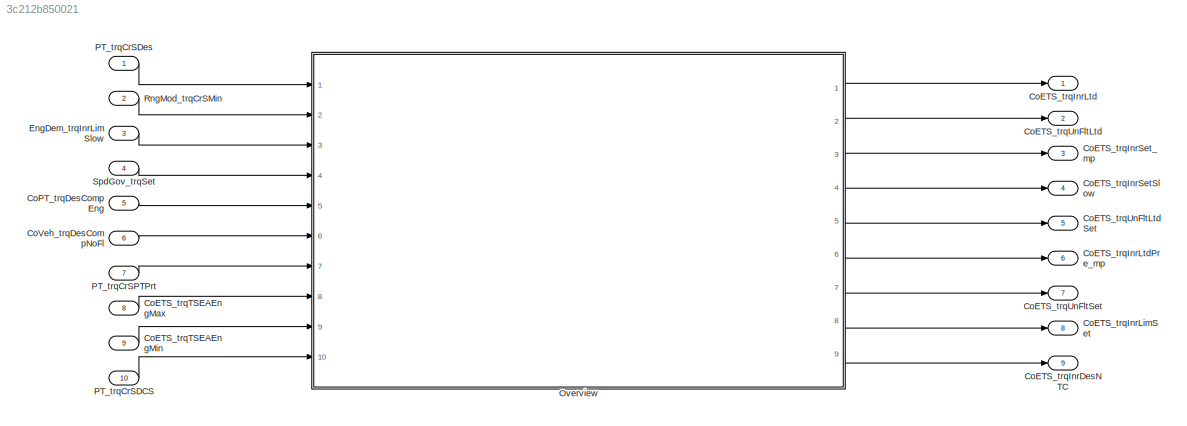
MODEL slx_3c212b850021
KIND model
CONFIG AbsTol = auto
CONFIG EnableMultiTasking = off
CONFIG FixedStep = auto
CONFIG MaxStep = auto
CONFIG MinStep = auto
CONFIG RelTol = 1e-3
CONFIG SampleTimeConstraint = Unconstrained
CONFIG Solver = VariableStepAuto
CONFIG SolverName = VariableStepAuto
CONFIG StartTime = 0.0
CONFIG StopTime = 10.0
BLOCK [Outport] CoETS_trqInrDesNTC
  IconDisplay = Port number
  Port = 9
BLOCK [Outport] CoETS_trqInrLimSet
  IconDisplay = Port number
  Port = 8
BLOCK [Outport] CoETS_trqInrLtd
  IconDisplay = Port number
BLOCK [Outport] CoETS_trqInrLtdPre_mp
  IconDisplay = Port number
  Port = 6
BLOCK [Outport] CoETS_trqInrSetSlow
  IconDisplay = Port number
  Port = 4
BLOCK [Outport] CoETS_trqInrSet_mp
  IconDisplay = Port number
  Port = 3
BLOCK [Inport] CoETS_trqTSEAEngMax
  IconDisplay = Port number
  Port = 8
BLOCK [Inport] CoETS_trqTSEAEngMin
  IconDisplay = Port number
  Port = 9
BLOCK [Outport] CoETS_trqUnFltLtd
  IconDisplay = Port number
  Port = 2
BLOCK [Outport] CoETS_trqUnFltLtdSet
  IconDisplay = Port number
  Port = 5
BLOCK [Outport] CoETS_trqUnFltSet
  IconDisplay = Port number
  Port = 7
BLOCK [Inport] CoPT_trqDesCompEng
  IconDisplay = Port number
  Port = 5
BLOCK [Inport] CoVeh_trqDesCompNoFl
  IconDisplay = Port number
  Port = 6
BLOCK [Inport] EngDem_trqInrLimSlow
  IconDisplay = Port number
  Port = 3
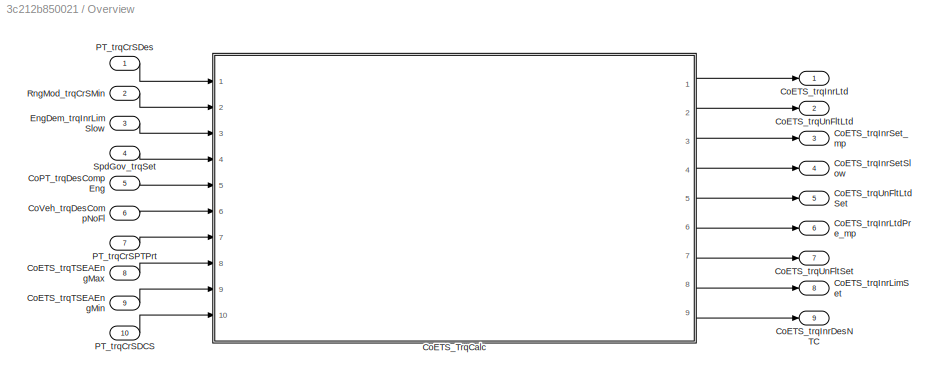
BLOCK [SubSystem] Overview
  Ports = [10, 9]
  RequestExecContextInheritance = off
BLOCK [ModelReference] Overview/CoETS_TrqCalc
  ModelNameDialog = CoETS_TrqCalc
  ModelReferenceVersion = 1.54
  Ports = [10, 9]
BLOCK [Outport] Overview/CoETS_trqInrDesNTC
  IconDisplay = Port number
  Port = 9
BLOCK [Outport] Overview/CoETS_trqInrLimSet
  IconDisplay = Port number
  Port = 8
BLOCK [Outport] Overview/CoETS_trqInrLtd
  IconDisplay = Port number
BLOCK [Outport] Overview/CoETS_trqInrLtdPre_mp
  IconDisplay = Port number
  Port = 6
BLOCK [Outport] Overview/CoETS_trqInrSetSlow
  IconDisplay = Port number
  Port = 4
BLOCK [Outport] Overview/CoETS_trqInrSet_mp
  IconDisplay = Port number
  Port = 3
BLOCK [Inport] Overview/CoETS_trqTSEAEngMax
  IconDisplay = Port number
  Port = 8
BLOCK [Inport] Overview/CoETS_trqTSEAEngMin
  IconDisplay = Port number
  Port = 9
BLOCK [Outport] Overview/CoETS_trqUnFltLtd
  IconDisplay = Port number
  Port = 2
BLOCK [Outport] Overview/CoETS_trqUnFltLtdSet
  IconDisplay = Port number
  Port = 5
BLOCK [Outport] Overview/CoETS_trqUnFltSet
  IconDisplay = Port number
  Port = 7
BLOCK [Inport] Overview/CoPT_trqDesCompEng
  IconDisplay = Port number
  Port = 5
BLOCK [Inport] Overview/CoVeh_trqDesCompNoFl
  IconDisplay = Port number
  Port = 6
BLOCK [Inport] Overview/EngDem_trqInrLimSlow
  IconDisplay = Port number
  Port = 3
BLOCK [Inport] Overview/PT_trqCrSDCS
  IconDisplay = Port number
  Port = 10
BLOCK [Inport] Overview/PT_trqCrSDes
  IconDisplay = Port number
BLOCK [Inport] Overview/PT_trqCrSPTPrt
  IconDisplay = Port number
  Port = 7
BLOCK [Inport] Overview/RngMod_trqCrSMin
  IconDisplay = Port number
  Port = 2
BLOCK [Inport] Overview/SpdGov_trqSet
  IconDisplay = Port number
  Port = 4
BLOCK [Inport] PT_trqCrSDCS
  IconDisplay = Port number
  Port = 10
BLOCK [Inport] PT_trqCrSDes
  IconDisplay = Port number
BLOCK [Inport] PT_trqCrSPTPrt
  IconDisplay = Port number
  Port = 7
BLOCK [Inport] RngMod_trqCrSMin
  IconDisplay = Port number
  Port = 2
BLOCK [Inport] SpdGov_trqSet
  IconDisplay = Port number
  Port = 4
LINE CoETS_trqTSEAEngMax:1 -> Overview:8
LINE CoETS_trqTSEAEngMin:1 -> Overview:9
LINE CoPT_trqDesCompEng:1 -> Overview:5
LINE CoVeh_trqDesCompNoFl:1 -> Overview:6
LINE EngDem_trqInrLimSlow:1 -> Overview:3
LINE Overview/CoETS_TrqCalc:1 -> Overview/CoETS_trqInrLtd:1
LINE Overview/CoETS_TrqCalc:2 -> Overview/CoETS_trqUnFltLtd:1
LINE Overview/CoETS_TrqCalc:3 -> Overview/CoETS_trqInrSet_mp:1
LINE Overview/CoETS_TrqCalc:4 -> Overview/CoETS_trqInrSetSlow:1
LINE Overview/CoETS_TrqCalc:5 -> Overview/CoETS_trqUnFltLtdSet:1
LINE Overview/CoETS_TrqCalc:6 -> Overview/CoETS_trqInrLtdPre_mp:1
LINE Overview/CoETS_TrqCalc:7 -> Overview/CoETS_trqUnFltSet:1
LINE Overview/CoETS_TrqCalc:8 -> Overview/CoETS_trqInrLimSet:1
LINE Overview/CoETS_TrqCalc:9 -> Overview/CoETS_trqInrDesNTC:1
LINE Overview/CoETS_trqTSEAEngMax:1 -> Overview/CoETS_TrqCalc:8
LINE Overview/CoETS_trqTSEAEngMin:1 -> Overview/CoETS_TrqCalc:9
LINE Overview/CoPT_trqDesCompEng:1 -> Overview/CoETS_TrqCalc:5
LINE Overview/CoVeh_trqDesCompNoFl:1 -> Overview/CoETS_TrqCalc:6
LINE Overview/EngDem_trqInrLimSlow:1 -> Overview/CoETS_TrqCalc:3
LINE Overview/PT_trqCrSDCS:1 -> Overview/CoETS_TrqCalc:10
LINE Overview/PT_trqCrSDes:1 -> Overview/CoETS_TrqCalc:1
LINE Overview/PT_trqCrSPTPrt:1 -> Overview/CoETS_TrqCalc:7
LINE Overview/RngMod_trqCrSMin:1 -> Overview/CoETS_TrqCalc:2
LINE Overview/SpdGov_trqSet:1 -> Overview/CoETS_TrqCalc:4
LINE Overview:1 -> CoETS_trqInrLtd:1
LINE Overview:2 -> CoETS_trqUnFltLtd:1
LINE Overview:3 -> CoETS_trqInrSet_mp:1
LINE Overview:4 -> CoETS_trqInrSetSlow:1
LINE Overview:5 -> CoETS_trqUnFltLtdSet:1
LINE Overview:6 -> CoETS_trqInrLtdPre_mp:1
LINE Overview:7 -> CoETS_trqUnFltSet:1
LINE Overview:8 -> CoETS_trqInrLimSet:1
LINE Overview:9 -> CoETS_trqInrDesNTC:1
LINE PT_trqCrSDCS:1 -> Overview:10
LINE PT_trqCrSDes:1 -> Overview:1
LINE PT_trqCrSPTPrt:1 -> Overview:7
LINE RngMod_trqCrSMin:1 -> Overview:2
LINE SpdGov_trqSet:1 -> Overview:4
